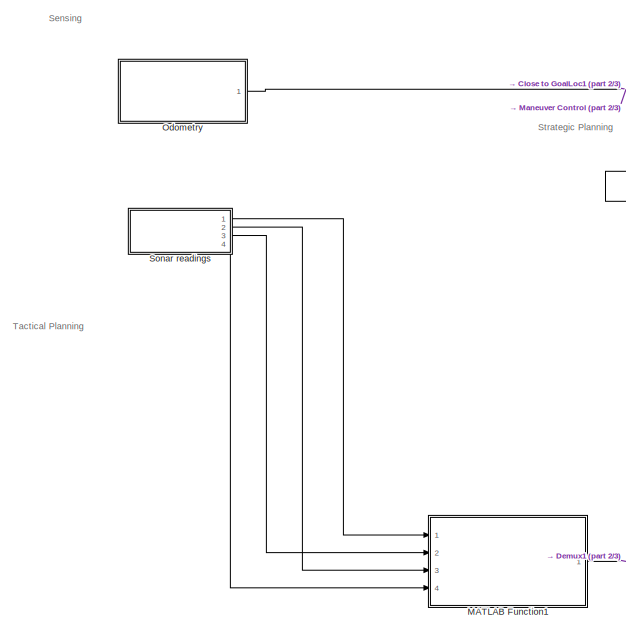
[diagram: root canvas - part 1/3, middle left region]
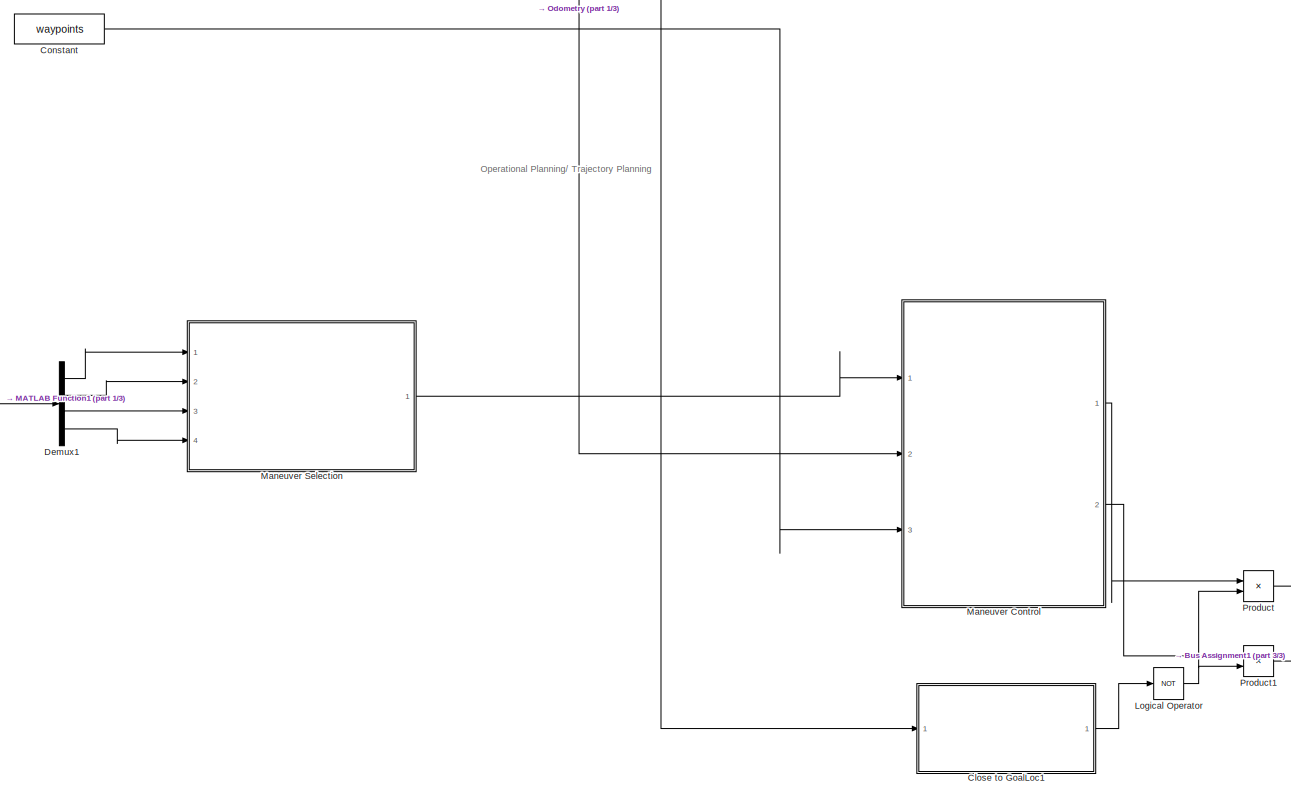
[diagram: root canvas - part 2/3, center side, full height]
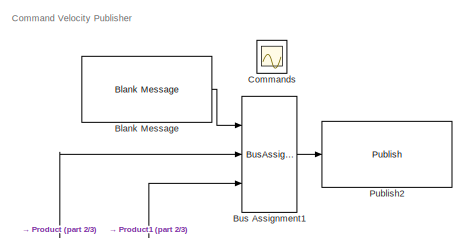
[diagram: root canvas - part 3/3, middle right region]
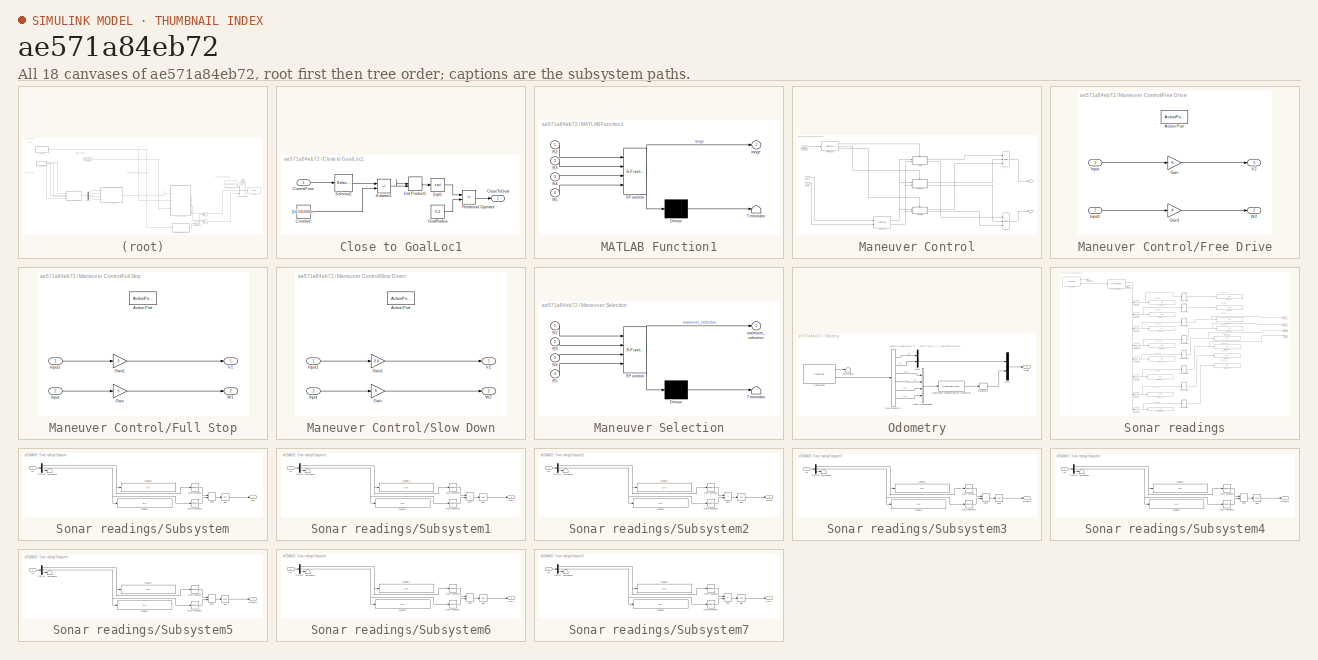
[diagram: thumbnail index - all 18 canvases of the model, root first then tree order]
MODEL slx_ae571a84eb72
KIND model
CONFIG AbsTol = auto
CONFIG EnableMultiTasking = off
CONFIG FixedStep = auto
CONFIG MaxStep = auto
CONFIG MinStep = auto
CONFIG RelTol = 1e-3
CONFIG SampleTimeConstraint = Unconstrained
CONFIG SolverName = FixedStepAuto
CONFIG StartTime = 0.0
CONFIG StopTime = inf
BLOCK [Reference] Blank Message  REF=robotlib/Blank Message
  Ports = [0, 1]
  SourceBlock = robotlib/Blank Message
  SourceProductBaseCode = RR
  SourceType = ROS Blank Message
BLOCK [BusAssignment] Bus Assignment1
  AssignedSignals = Linear.X,Angular.Z
  DialogController = Simulink.DDGSource_BusAssignment
  Ports = [3, 1]
BLOCK [SubSystem] Close to GoalLoc1
  Ports = [1, 1]
  RequestExecContextInheritance = off
BLOCK [Outport] Close to GoalLoc1/CloseToGoal
  VectorParamsAs1DForOutWhenUnconnected = off
BLOCK [Constant] Close to GoalLoc1/Constant
  Value = [14.1910000000000	1.24100000000000]
BLOCK [Inport] Close to GoalLoc1/CurrentPose
BLOCK [DotProduct] Close to GoalLoc1/Dot Product1
  OutDataTypeStr = Inherit: Inherit via internal rule
BLOCK [Constant] Close to GoalLoc1/GoalRadius
  Value = 0.2
BLOCK [RelationalOperator] Close to GoalLoc1/Relational Operator
  InputSameDT = off
  Operator = <=
  OutDataTypeStr = boolean
  Ports = [2, 1]
  RndMeth = Simplest
BLOCK [Selector] Close to GoalLoc1/Selector2
  IndexOptions = Index vector (dialog)
  Indices = [1 2]
  InputPortWidth = 3
  OutputSizes = 1
  Ports = [1, 1]
BLOCK [Sqrt] Close to GoalLoc1/Sqrt1
BLOCK [Sum] Close to GoalLoc1/Subtract1
  IconShape = rectangular
  Inputs = +-
  Ports = [2, 1]
BLOCK [Scope] Commands
  Floating = off
  NumInputPorts = 2
  Ports = [2]
  ScopeSpecificationString = Simulink.scopes.TimeScopeBlockCfg('CurrentConfiguration', extmgr.ConfigurationSet(extmgr.Configuration('Core','General UI',true),extmgr.Configuration('Core','Source UI',true),extmgr.Configuration('Sources','WiredSimulink',true),extmgr.Configuration('Visuals','Time Domain',true,'SerializedDisplays',{struct('MinYLimReal','-1.00000','MaxYLimReal','1.00000','YLabelReal','','MinYLimMag','0.00000','MaxY...<+1959ch>
BLOCK [Constant] Constant
  Value = waypoints
BLOCK [Demux] Demux1
  Ports = [1, 4]
BLOCK [Logic] Logical Operator
  AllPortsSameDT = off
  Operator = NOT
  OutDataTypeStr = boolean
  Ports = [1, 1]
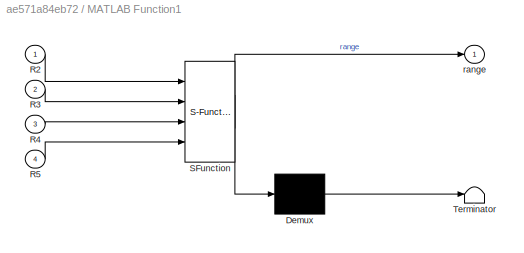
BLOCK [SubSystem] MATLAB Function1
  ErrorFcn = Stateflow.Translate.translate
  PermitHierarchicalResolution = ExplicitOnly
  Ports = [4, 1]
  RequestExecContextInheritance = off
  SFBlockType = MATLAB Function
  TreatAsAtomicUnit = on
BLOCK [Demux] MATLAB Function1/ Demux 
  Outputs = 1
  Ports = [1, 1]
BLOCK [S-Function] MATLAB Function1/ SFunction 
  EnableBusSupport = on
  FunctionName = sf_sfun
  PortCounts = [4 2]
  Ports = [4, 2]
  SFcnIsStateOwnerBlock = off
  SFunctionDeploymentMode = off
  Tag = Stateflow S-Function 6
BLOCK [Terminator] MATLAB Function1/ Terminator 
BLOCK [Inport] MATLAB Function1/R2
BLOCK [Inport] MATLAB Function1/R3
  Port = 2
BLOCK [Inport] MATLAB Function1/R4
  Port = 3
BLOCK [Inport] MATLAB Function1/R5
  Port = 4
BLOCK [Outport] MATLAB Function1/range
BLOCK [SubSystem] Maneuver Control
  Ports = [3, 2]
  RequestExecContextInheritance = off
BLOCK [SubSystem] Maneuver Control/Free Drive
  Ports = [2, 2, 0, 0, 0, 0, 0, 1]
  RequestExecContextInheritance = off
  TreatAsAtomicUnit = on
BLOCK [ActionPort] Maneuver Control/Free Drive/Action Port
  ActionPortLabel = case [ 3 ]:
BLOCK [Gain] Maneuver Control/Free Drive/Gain
BLOCK [Gain] Maneuver Control/Free Drive/Gain1
BLOCK [Inport] Maneuver Control/Free Drive/Input
BLOCK [Inport] Maneuver Control/Free Drive/Input1
  Port = 2
BLOCK [Outport] Maneuver Control/Free Drive/V2
BLOCK [Outport] Maneuver Control/Free Drive/W2
  Port = 2
BLOCK [SubSystem] Maneuver Control/Full Stop
  Ports = [2, 2, 0, 0, 0, 0, 0, 1]
  RequestExecContextInheritance = off
  TreatAsAtomicUnit = on
BLOCK [ActionPort] Maneuver Control/Full Stop/Action Port
  ActionPortLabel = case [ 1 ]:
BLOCK [Gain] Maneuver Control/Full Stop/Gain
  Gain = 0
BLOCK [Gain] Maneuver Control/Full Stop/Gain1
  Gain = 0
BLOCK [Inport] Maneuver Control/Full Stop/Input
  Port = 2
BLOCK [Inport] Maneuver Control/Full Stop/Input1
BLOCK [Outport] Maneuver Control/Full Stop/V1
BLOCK [Outport] Maneuver Control/Full Stop/W1
  Port = 2
BLOCK [Inport] Maneuver Control/Input
  Port = 2
BLOCK [Inport] Maneuver Control/Input1
  Port = 3
BLOCK [Reference] Maneuver Control/Pure Pursuit  REF=robotalgslib/Pure Pursuit
  Ports = [2, 2]
  SourceBlock = robotalgslib/Pure Pursuit
  SourceProductBaseCode = NV,RO
  SourceType = nav.slalgs.internal.PurePursuit
BLOCK [SubSystem] Maneuver Control/Slow Down
  Ports = [2, 2, 0, 0, 0, 0, 0, 1]
  RequestExecContextInheritance = off
  TreatAsAtomicUnit = on
BLOCK [ActionPort] Maneuver Control/Slow Down/Action Port
  ActionPortLabel = case [ 2 ]:
BLOCK [Gain] Maneuver Control/Slow Down/Gain
BLOCK [Gain] Maneuver Control/Slow Down/Gain1
  Gain = 0.4
BLOCK [Inport] Maneuver Control/Slow Down/Input
  Port = 2
BLOCK [Inport] Maneuver Control/Slow Down/Input1
BLOCK [Outport] Maneuver Control/Slow Down/V2
BLOCK [Outport] Maneuver Control/Slow Down/W2
  Port = 2
BLOCK [SwitchCase] Maneuver Control/Switch Case
  CaseConditions = {1,2,3}
  Ports = [1, 3]
  ShowDefaultCase = off
BLOCK [Outport] Maneuver Control/V
BLOCK [Outport] Maneuver Control/W
  Port = 2
BLOCK [Inport] Maneuver Control/maneuver_selection
BLOCK [Merge] Maneuver Control/v
  Inputs = 3
  Ports = [3, 1]
BLOCK [Merge] Maneuver Control/w
  Inputs = 3
  Ports = [3, 1]
BLOCK [SubSystem] Maneuver Selection
  ErrorFcn = Stateflow.Translate.translate
  PermitHierarchicalResolution = ExplicitOnly
  Ports = [4, 1]
  RequestExecContextInheritance = off
  SFBlockType = Chart
  TreatAsAtomicUnit = on
BLOCK [Demux] Maneuver Selection/ Demux 
  Outputs = 1
  Ports = [1, 1]
BLOCK [S-Function] Maneuver Selection/ SFunction 
  EnableBusSupport = on
  FunctionName = sf_sfun
  PortCounts = [4 2]
  Ports = [4, 2]
  SFcnIsStateOwnerBlock = off
  SFunctionDeploymentMode = off
  Tag = Stateflow S-Function 3
BLOCK [Terminator] Maneuver Selection/ Terminator 
BLOCK [Inport] Maneuver Selection/R2
BLOCK [Inport] Maneuver Selection/R3
  Port = 2
BLOCK [Inport] Maneuver Selection/R4
  Port = 3
BLOCK [Inport] Maneuver Selection/R5
  Port = 4
BLOCK [Outport] Maneuver Selection/maneuver_selection
BLOCK [SubSystem] Odometry
  Ports = [0, 1]
  RequestExecContextInheritance = off
BLOCK [BusSelector] Odometry/Bus Selector1
  OutputSignals = Pose.Pose.Position.X,Pose.Pose.Position.Y,Pose.Pose.Orientation.W,Pose.Pose.Orientation.X,Pose.Pose.Orientation.Y,Pose.Pose.Orientation.Z
  Ports = [1, 6]
BLOCK [Reference] Odometry/Coordinate Transformation Conversion  REF=robotcorelib/Coordinate Transformation Conversion
  Ports = [1, 1]
  SourceBlock = robotcorelib/Coordinate Transformation Conversion
  SourceProductBaseCode = NV,RO,RR,UV
  SourceType = robotics.slcore.internal.block.CoordinateTransformationConversion
BLOCK [Mux] Odometry/Mux1
  DisplayOption = bar
  Inputs = 2
  Ports = [2, 1]
BLOCK [Mux] Odometry/Mux2
  DisplayOption = bar
  Inputs = 2
  Ports = [2, 1]
BLOCK [Outport] Odometry/Pose
  VectorParamsAs1DForOutWhenUnconnected = off
BLOCK [Selector] Odometry/Selector2
  IndexOptions = Index vector (dialog)
  Indices = 1
  InputPortWidth = 3
  OutputSizes = 1
  Ports = [1, 1]
BLOCK [Reference] Odometry/Subscribe1  REF=robotlib/Subscribe
  Ports = [0, 2]
  SourceBlock = robotlib/Subscribe
  SourceProductBaseCode = RR
  SourceType = ROS Subscribe
BLOCK [Terminator] Odometry/Terminator
BLOCK [Concatenate] Odometry/Vector Concatenate
  NumInputs = 4
  Ports = [4, 1]
BLOCK [Product] Product
  Ports = [2, 1]
BLOCK [Product] Product1
  Ports = [2, 1]
BLOCK [Reference] Publish2  REF=robotlib/Publish
  AttributesFormatString = %<messageType>
  Ports = [1]
  SourceBlock = robotlib/Publish
  SourceProductBaseCode = RR
  SourceType = ROS Publish
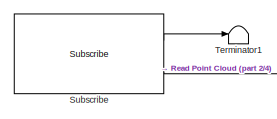
[diagram: Sonar readings - part 1/4, top left region]
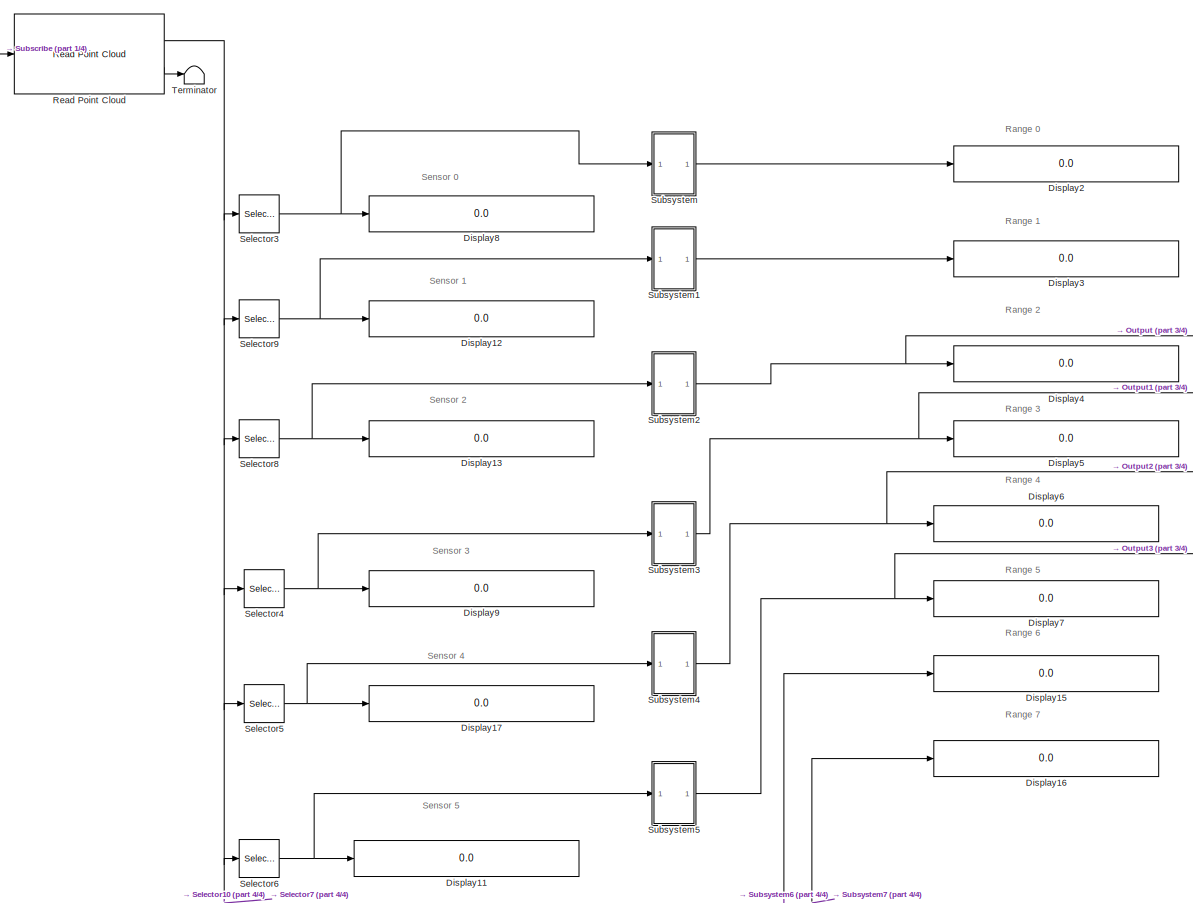
[diagram: Sonar readings - part 2/4, center side, full height]
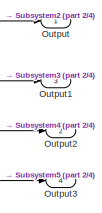
[diagram: Sonar readings - part 3/4, middle right region]
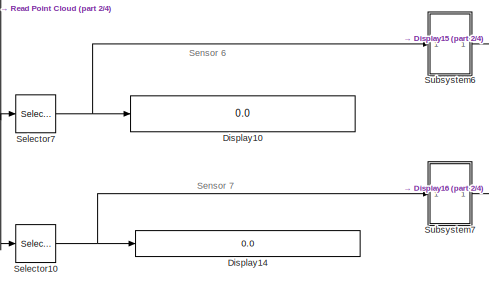
[diagram: Sonar readings - part 4/4, bottom center region]
BLOCK [SubSystem] Sonar readings
  PortSchema = {"entries":[{"content":{"sides":[{"content":{"connectorIds":[]},"type":"ConnectorPlacement.EquallySpacedRectSide","uuid":"cc9797a8-6551-4cc5-a464-2dfca9ae896a"},{"content":{"connectorIds":["Out1","Out2","Out3"],"side":"RIGHT"},"type":"ConnectorPlacement.EquallySpacedRectSide","uuid":"b2fd65e6-17ea-4988-b701-3713dcbefee6"},{"content":{"connectorIds":[],"side":"TOP"},"type":"ConnectorPlacement.Equal...<+399ch>
  Ports = [0, 4]
  RequestExecContextInheritance = off
BLOCK [Display] Sonar readings/Display10
  Decimation = 1
  Ports = [1]
BLOCK [Display] Sonar readings/Display11
  Decimation = 1
  Ports = [1]
BLOCK [Display] Sonar readings/Display12
  Decimation = 1
  Ports = [1]
BLOCK [Display] Sonar readings/Display13
  Decimation = 1
  Ports = [1]
BLOCK [Display] Sonar readings/Display14
  Decimation = 1
  Ports = [1]
BLOCK [Display] Sonar readings/Display15
  Decimation = 1
  Ports = [1]
BLOCK [Display] Sonar readings/Display16
  Decimation = 1
  Ports = [1]
BLOCK [Display] Sonar readings/Display17
  Decimation = 1
  Ports = [1]
BLOCK [Display] Sonar readings/Display2
  Decimation = 1
  Ports = [1]
BLOCK [Display] Sonar readings/Display3
  Decimation = 1
  Ports = [1]
BLOCK [Display] Sonar readings/Display4
  Decimation = 1
  Ports = [1]
BLOCK [Display] Sonar readings/Display5
  Decimation = 1
  Ports = [1]
BLOCK [Display] Sonar readings/Display6
  Decimation = 1
  Ports = [1]
BLOCK [Display] Sonar readings/Display7
  Decimation = 1
  Ports = [1]
BLOCK [Display] Sonar readings/Display8
  Decimation = 1
  Ports = [1]
BLOCK [Display] Sonar readings/Display9
  Decimation = 1
  Ports = [1]
BLOCK [Outport] Sonar readings/Output
BLOCK [Outport] Sonar readings/Output1
  Port = 3
BLOCK [Outport] Sonar readings/Output2
  Port = 2
BLOCK [Outport] Sonar readings/Output3
  Port = 4
BLOCK [Reference] Sonar readings/Read Point Cloud  REF=robotlib/Read Point Cloud
  Ports = [1, 2]
  SourceBlock = robotlib/Read Point Cloud
  SourceProductBaseCode = RR
  SourceType = ros.slros.internal.block.ReadPointCloud
BLOCK [Selector] Sonar readings/Selector10
  IndexOptions = Starting index (dialog),Starting index (dialog)
  Indices = 8,1
  InputPortWidth = 6
  NumberOfDimensions = 2
  OutputSizes = 1,3
  Ports = [1, 1]
BLOCK [Selector] Sonar readings/Selector3
  IndexOptions = Starting index (dialog),Starting index (dialog)
  Indices = 1,1
  InputPortWidth = 6
  NumberOfDimensions = 2
  OutputSizes = 1,3
  Ports = [1, 1]
BLOCK [Selector] Sonar readings/Selector4
  IndexOptions = Starting index (dialog),Starting index (dialog)
  Indices = 4,1
  InputPortWidth = 6
  NumberOfDimensions = 2
  OutputSizes = 1,3
  Ports = [1, 1]
BLOCK [Selector] Sonar readings/Selector5
  IndexOptions = Starting index (dialog),Starting index (dialog)
  Indices = 5,1
  InputPortWidth = 6
  NumberOfDimensions = 2
  OutputSizes = 1,3
  Ports = [1, 1]
BLOCK [Selector] Sonar readings/Selector6
  IndexOptions = Starting index (dialog),Starting index (dialog)
  Indices = 6,1
  InputPortWidth = 6
  NumberOfDimensions = 2
  OutputSizes = 1,3
  Ports = [1, 1]
BLOCK [Selector] Sonar readings/Selector7
  IndexOptions = Starting index (dialog),Starting index (dialog)
  Indices = 7,1
  InputPortWidth = 6
  NumberOfDimensions = 2
  OutputSizes = 1,3
  Ports = [1, 1]
BLOCK [Selector] Sonar readings/Selector8
  IndexOptions = Starting index (dialog),Starting index (dialog)
  Indices = 3,1
  InputPortWidth = 6
  NumberOfDimensions = 2
  OutputSizes = 1,3
  Ports = [1, 1]
BLOCK [Selector] Sonar readings/Selector9
  IndexOptions = Starting index (dialog),Starting index (dialog)
  Indices = 2,1
  InputPortWidth = 6
  NumberOfDimensions = 2
  OutputSizes = 1,3
  Ports = [1, 1]
BLOCK [Reference] Sonar readings/Subscribe  REF=robotlib/Subscribe
  Ports = [0, 2]
  SourceBlock = robotlib/Subscribe
  SourceProductBaseCode = RR
  SourceType = ROS Subscribe
BLOCK [SubSystem] Sonar readings/Subsystem
  Ports = [1, 1]
  RequestExecContextInheritance = off
BLOCK [Sum] Sonar readings/Subsystem/Add1
  IconShape = rectangular
  Ports = [2, 1]
BLOCK [Demux] Sonar readings/Subsystem/Demux
  Outputs = 3
  Ports = [1, 3]
BLOCK [Display] Sonar readings/Subsystem/Display2
  Decimation = 1
  Ports = [1]
BLOCK [Display] Sonar readings/Subsystem/Display3
  Decimation = 1
  Ports = [1]
BLOCK [Inport] Sonar readings/Subsystem/In1
BLOCK [Math] Sonar readings/Subsystem/Math Function
  Operator = square
  Ports = [1, 1]
BLOCK [Math] Sonar readings/Subsystem/Math Function1
  Operator = square
  Ports = [1, 1]
BLOCK [Outport] Sonar readings/Subsystem/Out1
BLOCK [Sqrt] Sonar readings/Subsystem/Sqrt
BLOCK [Terminator] Sonar readings/Subsystem/Terminator
BLOCK [SubSystem] Sonar readings/Subsystem1
  Ports = [1, 1]
  RequestExecContextInheritance = off
BLOCK [Sum] Sonar readings/Subsystem1/Add1
  IconShape = rectangular
  Ports = [2, 1]
BLOCK [Demux] Sonar readings/Subsystem1/Demux
  Outputs = 3
  Ports = [1, 3]
BLOCK [Display] Sonar readings/Subsystem1/Display2
  Decimation = 1
  Ports = [1]
BLOCK [Display] Sonar readings/Subsystem1/Display3
  Decimation = 1
  Ports = [1]
BLOCK [Inport] Sonar readings/Subsystem1/In1
BLOCK [Math] Sonar readings/Subsystem1/Math Function
  Operator = square
  Ports = [1, 1]
BLOCK [Math] Sonar readings/Subsystem1/Math Function1
  Operator = square
  Ports = [1, 1]
BLOCK [Outport] Sonar readings/Subsystem1/Out1
BLOCK [Sqrt] Sonar readings/Subsystem1/Sqrt
BLOCK [Terminator] Sonar readings/Subsystem1/Terminator
BLOCK [SubSystem] Sonar readings/Subsystem2
  Ports = [1, 1]
  RequestExecContextInheritance = off
BLOCK [Sum] Sonar readings/Subsystem2/Add1
  IconShape = rectangular
  Ports = [2, 1]
BLOCK [Demux] Sonar readings/Subsystem2/Demux
  Outputs = 3
  Ports = [1, 3]
BLOCK [Display] Sonar readings/Subsystem2/Display2
  Decimation = 1
  Ports = [1]
BLOCK [Display] Sonar readings/Subsystem2/Display3
  Decimation = 1
  Ports = [1]
BLOCK [Inport] Sonar readings/Subsystem2/In1
BLOCK [Math] Sonar readings/Subsystem2/Math Function
  Operator = square
  Ports = [1, 1]
BLOCK [Math] Sonar readings/Subsystem2/Math Function1
  Operator = square
  Ports = [1, 1]
BLOCK [Outport] Sonar readings/Subsystem2/Output
BLOCK [Sqrt] Sonar readings/Subsystem2/Sqrt
BLOCK [Terminator] Sonar readings/Subsystem2/Terminator
BLOCK [SubSystem] Sonar readings/Subsystem3
  Ports = [1, 1]
  RequestExecContextInheritance = off
BLOCK [Sum] Sonar readings/Subsystem3/Add1
  IconShape = rectangular
  Ports = [2, 1]
BLOCK [Demux] Sonar readings/Subsystem3/Demux
  Outputs = 3
  Ports = [1, 3]
BLOCK [Display] Sonar readings/Subsystem3/Display2
  Decimation = 1
  Ports = [1]
BLOCK [Display] Sonar readings/Subsystem3/Display3
  Decimation = 1
  Ports = [1]
BLOCK [Inport] Sonar readings/Subsystem3/In1
BLOCK [Math] Sonar readings/Subsystem3/Math Function
  Operator = square
  Ports = [1, 1]
BLOCK [Math] Sonar readings/Subsystem3/Math Function1
  Operator = square
  Ports = [1, 1]
BLOCK [Outport] Sonar readings/Subsystem3/Output1
BLOCK [Sqrt] Sonar readings/Subsystem3/Sqrt
BLOCK [Terminator] Sonar readings/Subsystem3/Terminator
BLOCK [SubSystem] Sonar readings/Subsystem4
  Ports = [1, 1]
  RequestExecContextInheritance = off
BLOCK [Sum] Sonar readings/Subsystem4/Add1
  IconShape = rectangular
  Ports = [2, 1]
BLOCK [Demux] Sonar readings/Subsystem4/Demux
  Outputs = 3
  Ports = [1, 3]
BLOCK [Display] Sonar readings/Subsystem4/Display2
  Decimation = 1
  Ports = [1]
BLOCK [Display] Sonar readings/Subsystem4/Display3
  Decimation = 1
  Ports = [1]
BLOCK [Inport] Sonar readings/Subsystem4/In1
BLOCK [Math] Sonar readings/Subsystem4/Math Function
  Operator = square
  Ports = [1, 1]
BLOCK [Math] Sonar readings/Subsystem4/Math Function1
  Operator = square
  Ports = [1, 1]
BLOCK [Outport] Sonar readings/Subsystem4/Output2
BLOCK [Sqrt] Sonar readings/Subsystem4/Sqrt
BLOCK [Terminator] Sonar readings/Subsystem4/Terminator
BLOCK [SubSystem] Sonar readings/Subsystem5
  Ports = [1, 1]
  RequestExecContextInheritance = off
BLOCK [Sum] Sonar readings/Subsystem5/Add1
  IconShape = rectangular
  Ports = [2, 1]
BLOCK [Demux] Sonar readings/Subsystem5/Demux
  Outputs = 3
  Ports = [1, 3]
BLOCK [Display] Sonar readings/Subsystem5/Display2
  Decimation = 1
  Ports = [1]
BLOCK [Display] Sonar readings/Subsystem5/Display3
  Decimation = 1
  Ports = [1]
BLOCK [Inport] Sonar readings/Subsystem5/In1
BLOCK [Math] Sonar readings/Subsystem5/Math Function
  Operator = square
  Ports = [1, 1]
BLOCK [Math] Sonar readings/Subsystem5/Math Function1
  Operator = square
  Ports = [1, 1]
BLOCK [Outport] Sonar readings/Subsystem5/Output3
BLOCK [Sqrt] Sonar readings/Subsystem5/Sqrt
BLOCK [Terminator] Sonar readings/Subsystem5/Terminator
BLOCK [SubSystem] Sonar readings/Subsystem6
  Ports = [1, 1]
  RequestExecContextInheritance = off
BLOCK [Sum] Sonar readings/Subsystem6/Add1
  IconShape = rectangular
  Ports = [2, 1]
BLOCK [Demux] Sonar readings/Subsystem6/Demux
  Outputs = 3
  Ports = [1, 3]
BLOCK [Display] Sonar readings/Subsystem6/Display2
  Decimation = 1
  Ports = [1]
BLOCK [Display] Sonar readings/Subsystem6/Display3
  Decimation = 1
  Ports = [1]
BLOCK [Inport] Sonar readings/Subsystem6/In1
BLOCK [Math] Sonar readings/Subsystem6/Math Function
  Operator = square
  Ports = [1, 1]
BLOCK [Math] Sonar readings/Subsystem6/Math Function1
  Operator = square
  Ports = [1, 1]
BLOCK [Outport] Sonar readings/Subsystem6/Out1
BLOCK [Sqrt] Sonar readings/Subsystem6/Sqrt
BLOCK [Terminator] Sonar readings/Subsystem6/Terminator
BLOCK [SubSystem] Sonar readings/Subsystem7
  Ports = [1, 1]
  RequestExecContextInheritance = off
BLOCK [Sum] Sonar readings/Subsystem7/Add1
  IconShape = rectangular
  Ports = [2, 1]
BLOCK [Demux] Sonar readings/Subsystem7/Demux
  Outputs = 3
  Ports = [1, 3]
BLOCK [Display] Sonar readings/Subsystem7/Display2
  Decimation = 1
  Ports = [1]
BLOCK [Display] Sonar readings/Subsystem7/Display3
  Decimation = 1
  Ports = [1]
BLOCK [Inport] Sonar readings/Subsystem7/In1
BLOCK [Math] Sonar readings/Subsystem7/Math Function
  Operator = square
  Ports = [1, 1]
BLOCK [Math] Sonar readings/Subsystem7/Math Function1
  Operator = square
  Ports = [1, 1]
BLOCK [Outport] Sonar readings/Subsystem7/Out1
BLOCK [Sqrt] Sonar readings/Subsystem7/Sqrt
BLOCK [Terminator] Sonar readings/Subsystem7/Terminator
BLOCK [Terminator] Sonar readings/Terminator
BLOCK [Terminator] Sonar readings/Terminator1
ANNOTATION (root): Command Velocity Publisher
ANNOTATION (root): Operational Planning/ Trajectory Planning
ANNOTATION (root): Sensing
ANNOTATION (root): Strategic Planning
ANNOTATION (root): Tactical Planning
ANNOTATION Odometry: Generate a pose vector (x, y, theta) from X, Y, and quaternion data
ANNOTATION Sonar readings: Range 0
ANNOTATION Sonar readings: Range 1
ANNOTATION Sonar readings: Range 2
ANNOTATION Sonar readings: Range 3
ANNOTATION Sonar readings: Range 4
ANNOTATION Sonar readings: Range 5
ANNOTATION Sonar readings: Range 6
ANNOTATION Sonar readings: Range 7
ANNOTATION Sonar readings: Sensor 0
ANNOTATION Sonar readings: Sensor 1
ANNOTATION Sonar readings: Sensor 2
ANNOTATION Sonar readings: Sensor 3
ANNOTATION Sonar readings: Sensor 4
ANNOTATION Sonar readings: Sensor 5
ANNOTATION Sonar readings: Sensor 6
ANNOTATION Sonar readings: Sensor 7
LINE Blank Message:1 -> Bus Assignment1:1
LINE Bus Assignment1:1 -> Publish2:1
LINE Close to GoalLoc1/Constant:1 -> Close to GoalLoc1/Subtract1:2
LINE Close to GoalLoc1/CurrentPose:1 -> Close to GoalLoc1/Selector2:1
LINE Close to GoalLoc1/Dot Product1:1 -> Close to GoalLoc1/Sqrt1:1
LINE Close to GoalLoc1/GoalRadius:1 -> Close to GoalLoc1/Relational Operator:2
LINE Close to GoalLoc1/Relational Operator:1 -> Close to GoalLoc1/CloseToGoal:1
LINE Close to GoalLoc1/Selector2:1 -> Close to GoalLoc1/Subtract1:1
LINE Close to GoalLoc1/Sqrt1:1 -> Close to GoalLoc1/Relational Operator:1
NET Close to GoalLoc1/Subtract1:1 -> Close to GoalLoc1/Dot Product1:1, Close to GoalLoc1/Dot Product1:2
LINE Close to GoalLoc1:1 -> Logical Operator:1
LINE Constant:1 -> Maneuver Control:3
LINE Demux1:1 -> Maneuver Selection:1
LINE Demux1:2 -> Maneuver Selection:2
LINE Demux1:3 -> Maneuver Selection:3
LINE Demux1:4 -> Maneuver Selection:4
NET Logical Operator:1 -> Product1:2, Product:2
LINE MATLAB Function1:1 -> Demux1:1
LINE Maneuver Control/Free Drive/Gain1:1 -> Maneuver Control/Free Drive/W2:1
LINE Maneuver Control/Free Drive/Gain:1 -> Maneuver Control/Free Drive/V2:1
LINE Maneuver Control/Free Drive/Input1:1 -> Maneuver Control/Free Drive/Gain1:1
LINE Maneuver Control/Free Drive/Input:1 -> Maneuver Control/Free Drive/Gain:1
LINE Maneuver Control/Free Drive:1 -> Maneuver Control/v:3
LINE Maneuver Control/Free Drive:2 -> Maneuver Control/w:3
LINE Maneuver Control/Full Stop/Gain1:1 -> Maneuver Control/Full Stop/V1:1
LINE Maneuver Control/Full Stop/Gain:1 -> Maneuver Control/Full Stop/W1:1
LINE Maneuver Control/Full Stop/Input1:1 -> Maneuver Control/Full Stop/Gain1:1
LINE Maneuver Control/Full Stop/Input:1 -> Maneuver Control/Full Stop/Gain:1
LINE Maneuver Control/Full Stop:1 -> Maneuver Control/v:1
LINE Maneuver Control/Full Stop:2 -> Maneuver Control/w:1
LINE Maneuver Control/Input1:1 -> Maneuver Control/Pure Pursuit:2
LINE Maneuver Control/Input:1 -> Maneuver Control/Pure Pursuit:1
NET Maneuver Control/Pure Pursuit:1 -> Maneuver Control/Free Drive:1, Maneuver Control/Full Stop:1, Maneuver Control/Slow Down:1
NET Maneuver Control/Pure Pursuit:2 -> Maneuver Control/Free Drive:2, Maneuver Control/Full Stop:2, Maneuver Control/Slow Down:2
LINE Maneuver Control/Slow Down/Gain1:1 -> Maneuver Control/Slow Down/V2:1
LINE Maneuver Control/Slow Down/Gain:1 -> Maneuver Control/Slow Down/W2:1
LINE Maneuver Control/Slow Down/Input1:1 -> Maneuver Control/Slow Down/Gain1:1
LINE Maneuver Control/Slow Down/Input:1 -> Maneuver Control/Slow Down/Gain:1
LINE Maneuver Control/Slow Down:1 -> Maneuver Control/v:2
LINE Maneuver Control/Slow Down:2 -> Maneuver Control/w:2
LINE Maneuver Control/Switch Case:1 -> Maneuver Control/Full Stop:ifaction
LINE Maneuver Control/Switch Case:2 -> Maneuver Control/Slow Down:ifaction
LINE Maneuver Control/Switch Case:3 -> Maneuver Control/Free Drive:ifaction
LINE Maneuver Control/maneuver_selection:1 -> Maneuver Control/Switch Case:1
LINE Maneuver Control/v:1 -> Maneuver Control/V:1
LINE Maneuver Control/w:1 -> Maneuver Control/W:1
LINE Maneuver Control:1 -> Product:1
LINE Maneuver Control:2 -> Product1:1
LINE Maneuver Selection:1 -> Maneuver Control:1
LINE Odometry/Bus Selector1:1 -> Odometry/Mux1:1
LINE Odometry/Bus Selector1:2 -> Odometry/Mux1:2
LINE Odometry/Bus Selector1:3 -> Odometry/Vector Concatenate:1
LINE Odometry/Bus Selector1:4 -> Odometry/Vector Concatenate:2
LINE Odometry/Bus Selector1:5 -> Odometry/Vector Concatenate:3
LINE Odometry/Bus Selector1:6 -> Odometry/Vector Concatenate:4
LINE Odometry/Coordinate Transformation Conversion:1 -> Odometry/Selector2:1
LINE Odometry/Mux1:1 -> Odometry/Mux2:1
LINE Odometry/Mux2:1 -> Odometry/Pose:1
LINE Odometry/Selector2:1 -> Odometry/Mux2:2
LINE Odometry/Subscribe1:1 -> Odometry/Terminator:1
LINE Odometry/Subscribe1:2 -> Odometry/Bus Selector1:1
LINE Odometry/Vector Concatenate:1 -> Odometry/Coordinate Transformation Conversion:1
NET Odometry:1 -> Close to GoalLoc1:1, Maneuver Control:2
LINE Product1:1 -> Bus Assignment1:3
LINE Product:1 -> Bus Assignment1:2
NET Sonar readings/Read Point Cloud:1 -> Sonar readings/Selector10:1, Sonar readings/Selector3:1, Sonar readings/Selector4:1, Sonar readings/Selector5:1, Sonar readings/Selector6:1, Sonar readings/Selector7:1, Sonar readings/Selector8:1, Sonar readings/Selector9:1
LINE Sonar readings/Read Point Cloud:2 -> Sonar readings/Terminator:1
NET Sonar readings/Selector10:1 -> Sonar readings/Display14:1, Sonar readings/Subsystem7:1
NET Sonar readings/Selector3:1 -> Sonar readings/Display8:1, Sonar readings/Subsystem:1
NET Sonar readings/Selector4:1 -> Sonar readings/Display9:1, Sonar readings/Subsystem3:1
NET Sonar readings/Selector5:1 -> Sonar readings/Display17:1, Sonar readings/Subsystem4:1
NET Sonar readings/Selector6:1 -> Sonar readings/Display11:1, Sonar readings/Subsystem5:1
NET Sonar readings/Selector7:1 -> Sonar readings/Display10:1, Sonar readings/Subsystem6:1
NET Sonar readings/Selector8:1 -> Sonar readings/Display13:1, Sonar readings/Subsystem2:1
NET Sonar readings/Selector9:1 -> Sonar readings/Display12:1, Sonar readings/Subsystem1:1
LINE Sonar readings/Subscribe:1 -> Sonar readings/Terminator1:1
LINE Sonar readings/Subscribe:2 -> Sonar readings/Read Point Cloud:1
LINE Sonar readings/Subsystem/Add1:1 -> Sonar readings/Subsystem/Sqrt:1
NET Sonar readings/Subsystem/Demux:1 -> Sonar readings/Subsystem/Display2:1, Sonar readings/Subsystem/Math Function:1
NET Sonar readings/Subsystem/Demux:2 -> Sonar readings/Subsystem/Display3:1, Sonar readings/Subsystem/Math Function1:1
LINE Sonar readings/Subsystem/Demux:3 -> Sonar readings/Subsystem/Terminator:1
LINE Sonar readings/Subsystem/In1:1 -> Sonar readings/Subsystem/Demux:1
LINE Sonar readings/Subsystem/Math Function1:1 -> Sonar readings/Subsystem/Add1:2
LINE Sonar readings/Subsystem/Math Function:1 -> Sonar readings/Subsystem/Add1:1
LINE Sonar readings/Subsystem/Sqrt:1 -> Sonar readings/Subsystem/Out1:1
LINE Sonar readings/Subsystem1/Add1:1 -> Sonar readings/Subsystem1/Sqrt:1
NET Sonar readings/Subsystem1/Demux:1 -> Sonar readings/Subsystem1/Display2:1, Sonar readings/Subsystem1/Math Function:1
NET Sonar readings/Subsystem1/Demux:2 -> Sonar readings/Subsystem1/Display3:1, Sonar readings/Subsystem1/Math Function1:1
LINE Sonar readings/Subsystem1/Demux:3 -> Sonar readings/Subsystem1/Terminator:1
LINE Sonar readings/Subsystem1/In1:1 -> Sonar readings/Subsystem1/Demux:1
LINE Sonar readings/Subsystem1/Math Function1:1 -> Sonar readings/Subsystem1/Add1:2
LINE Sonar readings/Subsystem1/Math Function:1 -> Sonar readings/Subsystem1/Add1:1
LINE Sonar readings/Subsystem1/Sqrt:1 -> Sonar readings/Subsystem1/Out1:1
LINE Sonar readings/Subsystem1:1 -> Sonar readings/Display3:1
LINE Sonar readings/Subsystem2/Add1:1 -> Sonar readings/Subsystem2/Sqrt:1
NET Sonar readings/Subsystem2/Demux:1 -> Sonar readings/Subsystem2/Display2:1, Sonar readings/Subsystem2/Math Function:1
NET Sonar readings/Subsystem2/Demux:2 -> Sonar readings/Subsystem2/Display3:1, Sonar readings/Subsystem2/Math Function1:1
LINE Sonar readings/Subsystem2/Demux:3 -> Sonar readings/Subsystem2/Terminator:1
LINE Sonar readings/Subsystem2/In1:1 -> Sonar readings/Subsystem2/Demux:1
LINE Sonar readings/Subsystem2/Math Function1:1 -> Sonar readings/Subsystem2/Add1:2
LINE Sonar readings/Subsystem2/Math Function:1 -> Sonar readings/Subsystem2/Add1:1
LINE Sonar readings/Subsystem2/Sqrt:1 -> Sonar readings/Subsystem2/Output:1
NET Sonar readings/Subsystem2:1 -> Sonar readings/Display4:1, Sonar readings/Output:1
LINE Sonar readings/Subsystem3/Add1:1 -> Sonar readings/Subsystem3/Sqrt:1
NET Sonar readings/Subsystem3/Demux:1 -> Sonar readings/Subsystem3/Display2:1, Sonar readings/Subsystem3/Math Function:1
NET Sonar readings/Subsystem3/Demux:2 -> Sonar readings/Subsystem3/Display3:1, Sonar readings/Subsystem3/Math Function1:1
LINE Sonar readings/Subsystem3/Demux:3 -> Sonar readings/Subsystem3/Terminator:1
LINE Sonar readings/Subsystem3/In1:1 -> Sonar readings/Subsystem3/Demux:1
LINE Sonar readings/Subsystem3/Math Function1:1 -> Sonar readings/Subsystem3/Add1:2
LINE Sonar readings/Subsystem3/Math Function:1 -> Sonar readings/Subsystem3/Add1:1
LINE Sonar readings/Subsystem3/Sqrt:1 -> Sonar readings/Subsystem3/Output1:1
NET Sonar readings/Subsystem3:1 -> Sonar readings/Display5:1, Sonar readings/Output1:1
LINE Sonar readings/Subsystem4/Add1:1 -> Sonar readings/Subsystem4/Sqrt:1
NET Sonar readings/Subsystem4/Demux:1 -> Sonar readings/Subsystem4/Display2:1, Sonar readings/Subsystem4/Math Function:1
NET Sonar readings/Subsystem4/Demux:2 -> Sonar readings/Subsystem4/Display3:1, Sonar readings/Subsystem4/Math Function1:1
LINE Sonar readings/Subsystem4/Demux:3 -> Sonar readings/Subsystem4/Terminator:1
LINE Sonar readings/Subsystem4/In1:1 -> Sonar readings/Subsystem4/Demux:1
LINE Sonar readings/Subsystem4/Math Function1:1 -> Sonar readings/Subsystem4/Add1:2
LINE Sonar readings/Subsystem4/Math Function:1 -> Sonar readings/Subsystem4/Add1:1
LINE Sonar readings/Subsystem4/Sqrt:1 -> Sonar readings/Subsystem4/Output2:1
NET Sonar readings/Subsystem4:1 -> Sonar readings/Display6:1, Sonar readings/Output2:1
LINE Sonar readings/Subsystem5/Add1:1 -> Sonar readings/Subsystem5/Sqrt:1
NET Sonar readings/Subsystem5/Demux:1 -> Sonar readings/Subsystem5/Display2:1, Sonar readings/Subsystem5/Math Function:1
NET Sonar readings/Subsystem5/Demux:2 -> Sonar readings/Subsystem5/Display3:1, Sonar readings/Subsystem5/Math Function1:1
LINE Sonar readings/Subsystem5/Demux:3 -> Sonar readings/Subsystem5/Terminator:1
LINE Sonar readings/Subsystem5/In1:1 -> Sonar readings/Subsystem5/Demux:1
LINE Sonar readings/Subsystem5/Math Function1:1 -> Sonar readings/Subsystem5/Add1:2
LINE Sonar readings/Subsystem5/Math Function:1 -> Sonar readings/Subsystem5/Add1:1
LINE Sonar readings/Subsystem5/Sqrt:1 -> Sonar readings/Subsystem5/Output3:1
NET Sonar readings/Subsystem5:1 -> Sonar readings/Display7:1, Sonar readings/Output3:1
LINE Sonar readings/Subsystem6/Add1:1 -> Sonar readings/Subsystem6/Sqrt:1
NET Sonar readings/Subsystem6/Demux:1 -> Sonar readings/Subsystem6/Display2:1, Sonar readings/Subsystem6/Math Function:1
NET Sonar readings/Subsystem6/Demux:2 -> Sonar readings/Subsystem6/Display3:1, Sonar readings/Subsystem6/Math Function1:1
LINE Sonar readings/Subsystem6/Demux:3 -> Sonar readings/Subsystem6/Terminator:1
LINE Sonar readings/Subsystem6/In1:1 -> Sonar readings/Subsystem6/Demux:1
LINE Sonar readings/Subsystem6/Math Function1:1 -> Sonar readings/Subsystem6/Add1:2
LINE Sonar readings/Subsystem6/Math Function:1 -> Sonar readings/Subsystem6/Add1:1
LINE Sonar readings/Subsystem6/Sqrt:1 -> Sonar readings/Subsystem6/Out1:1
LINE Sonar readings/Subsystem6:1 -> Sonar readings/Display15:1
LINE Sonar readings/Subsystem7/Add1:1 -> Sonar readings/Subsystem7/Sqrt:1
NET Sonar readings/Subsystem7/Demux:1 -> Sonar readings/Subsystem7/Display2:1, Sonar readings/Subsystem7/Math Function:1
NET Sonar readings/Subsystem7/Demux:2 -> Sonar readings/Subsystem7/Display3:1, Sonar readings/Subsystem7/Math Function1:1
LINE Sonar readings/Subsystem7/Demux:3 -> Sonar readings/Subsystem7/Terminator:1
LINE Sonar readings/Subsystem7/In1:1 -> Sonar readings/Subsystem7/Demux:1
LINE Sonar readings/Subsystem7/Math Function1:1 -> Sonar readings/Subsystem7/Add1:2
LINE Sonar readings/Subsystem7/Math Function:1 -> Sonar readings/Subsystem7/Add1:1
LINE Sonar readings/Subsystem7/Sqrt:1 -> Sonar readings/Subsystem7/Out1:1
LINE Sonar readings/Subsystem7:1 -> Sonar readings/Display16:1
LINE Sonar readings/Subsystem:1 -> Sonar readings/Display2:1
LINE Sonar readings:1 -> MATLAB Function1:1
LINE Sonar readings:2 -> MATLAB Function1:3
LINE Sonar readings:3 -> MATLAB Function1:2
LINE Sonar readings:4 -> MATLAB Function1:4
note: NET lines group one-source signal fan-out (src -> all destinations, sorted); 1:1 wires keep LINE
CHART Maneuver Selection states=0 transitions=10
CHART MATLAB Function1 states=1 transitions=1
  STATE_LABEL 'eML_blk_kernel()'
  STATE_LABEL 'SCRIPT:\nfunction range = sonarRanges(R2,R3,R4,R5)\nrange = [R2 R3 R4 R5];\nend\n'
CHART  states=0 transitions=0
CHART  states=0 transitions=0
